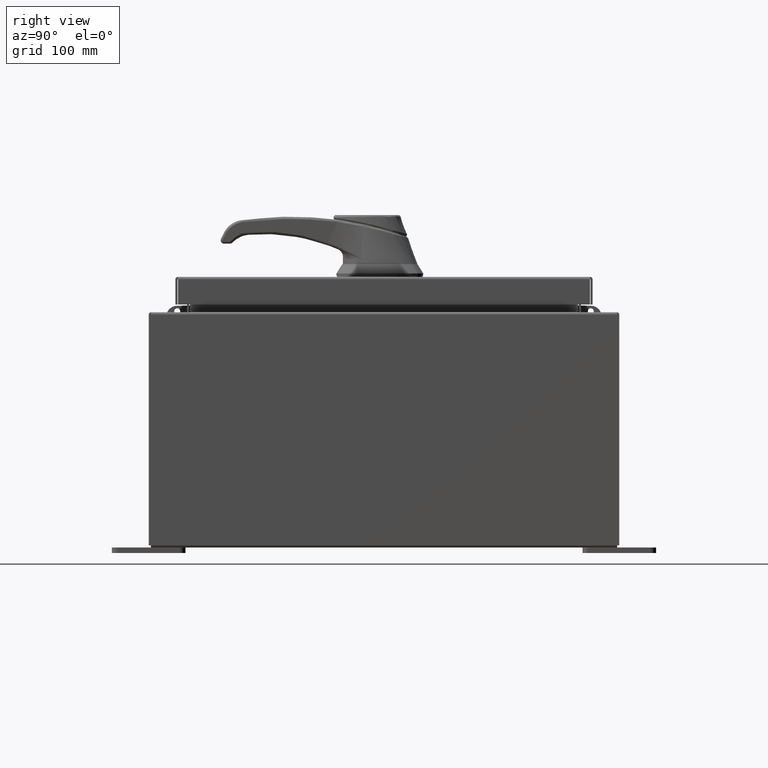
[diagram: clean part render]
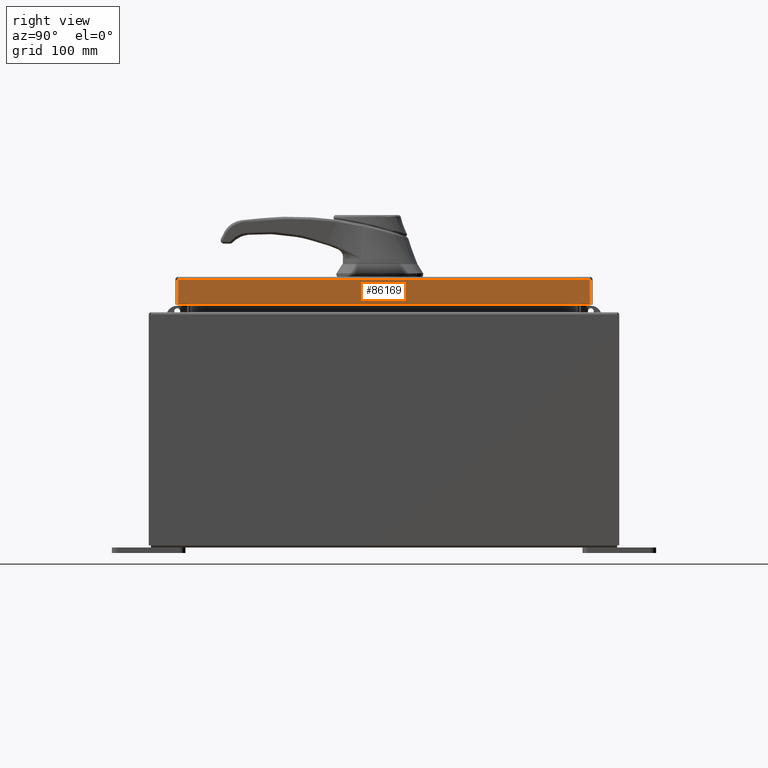
[diagram: same view with one face highlighted and labeled with its STEP entity id]
A machine part, right view. The second image highlights one B-rep face of the part: STEP entity #86169.
In plain terms, the highlighted planar face has unit normal (1, 0, 0).
Its self-contained STEP definition (entity closure, byte-faithful):
#245 = CARTESIAN_POINT ( 'NONE',  ( 5.077999999999998500, 7.005157864376269700, -0.08769999999999943100 ) ) ;
#4540 = ORIENTED_EDGE ( 'NONE', *, *, #104807, .T. ) ;
#8951 = DIRECTION ( 'NONE',  ( 1.000000000000000000, 0.0000000000000000000, 3.798629886902798700E-015 ) ) ;
#9312 = CARTESIAN_POINT ( 'NONE',  ( 5.078000000000002100, -7.005157864376262600, -0.9376999999999997600 ) ) ;
#19343 = EDGE_CURVE ( 'NONE', #48827, #79754, #58018, .T. ) ;
#21052 = DIRECTION ( 'NONE',  ( -3.798629886902798700E-015, -6.982962677686265900E-015, 1.000000000000000000 ) ) ;
#29031 = DIRECTION ( 'NONE',  ( -3.798629886902798700E-015, -6.982962677686265900E-015, 1.000000000000000000 ) ) ;
#29265 = CARTESIAN_POINT ( 'NONE',  ( 5.077999999999998500, 7.005157864376269700, 6.846701213994391700E-014 ) ) ;
#32700 = CARTESIAN_POINT ( 'NONE',  ( 5.078000000000002100, 7.005157864376276000, -0.9376999999999997600 ) ) ;
#34337 = ORIENTED_EDGE ( 'NONE', *, *, #96976, .F. ) ;
#36003 = FACE_OUTER_BOUND ( 'NONE', #78353, .T. ) ;
#36269 = VECTOR ( 'NONE', #21052, 39.37007874015748100 ) ;
#36499 = VERTEX_POINT ( 'NONE', #9312 ) ;
#42173 = CARTESIAN_POINT ( 'NONE',  ( 5.078000000000002100, -7.094000000000000300, -0.9376999999999997600 ) ) ;
#42432 = LINE ( 'NONE', #42173, #64216 ) ;
#42542 = LINE ( 'NONE', #79761, #102610 ) ;
#46332 = CARTESIAN_POINT ( 'NONE',  ( 5.077999999999998500, -7.005157864376269700, -0.08769999999999889000 ) ) ;
#48827 = VERTEX_POINT ( 'NONE', #32700 ) ;
#49725 = PLANE ( 'NONE',  #58208 ) ;
#58018 = LINE ( 'NONE', #29265, #36269 ) ;
#58208 = AXIS2_PLACEMENT_3D ( 'NONE', #90410, #8951, #66168 ) ;
#63698 = DIRECTION ( 'NONE',  ( -2.925649685708631700E-031, -1.000000000000000000, 7.701855070945201600E-017 ) ) ;
#64216 = VECTOR ( 'NONE', #66134, 39.37007874015748100 ) ;
#66134 = DIRECTION ( 'NONE',  ( 0.0000000000000000000, -1.000000000000000000, 0.0000000000000000000 ) ) ;
#66168 = DIRECTION ( 'NONE',  ( 3.798629886902798700E-015, 0.0000000000000000000, -1.000000000000000000 ) ) ;
#68589 = ORIENTED_EDGE ( 'NONE', *, *, #19343, .T. ) ;
#78353 = EDGE_LOOP ( 'NONE', ( #34337, #88710, #68589, #4540 ) ) ;
#79754 = VERTEX_POINT ( 'NONE', #245 ) ;
#79761 = CARTESIAN_POINT ( 'NONE',  ( 5.077999999999998500, -6.754526897220403200E-018, -0.08769999999999943100 ) ) ;
#85826 = CARTESIAN_POINT ( 'NONE',  ( 5.077999999999998500, -7.005157864376269700, -0.07469999999999972500 ) ) ;
#86169 = ADVANCED_FACE ( 'NONE', ( #36003 ), #49725, .T. ) ;
#87656 = VERTEX_POINT ( 'NONE', #46332 ) ;
#88058 = VECTOR ( 'NONE', #29031, 39.37007874015748100 ) ;
#88710 = ORIENTED_EDGE ( 'NONE', *, *, #105681, .F. ) ;
#90410 = CARTESIAN_POINT ( 'NONE',  ( 5.077999999999998500, 0.0000000000000000000, 1.955025622170399100E-014 ) ) ;
#90574 = LINE ( 'NONE', #85826, #88058 ) ;
#96976 = EDGE_CURVE ( 'NONE', #36499, #87656, #90574, .T. ) ;
#102610 = VECTOR ( 'NONE', #63698, 39.37007874015748100 ) ;
#104807 = EDGE_CURVE ( 'NONE', #79754, #87656, #42542, .T. ) ;
#105681 = EDGE_CURVE ( 'NONE', #48827, #36499, #42432, .T. ) ;